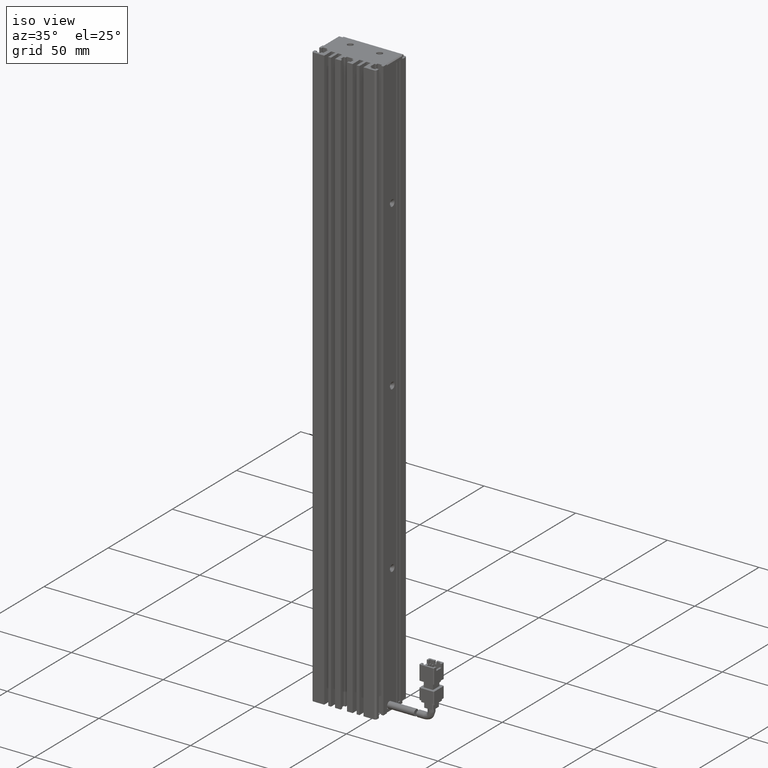
[diagram: clean part render]
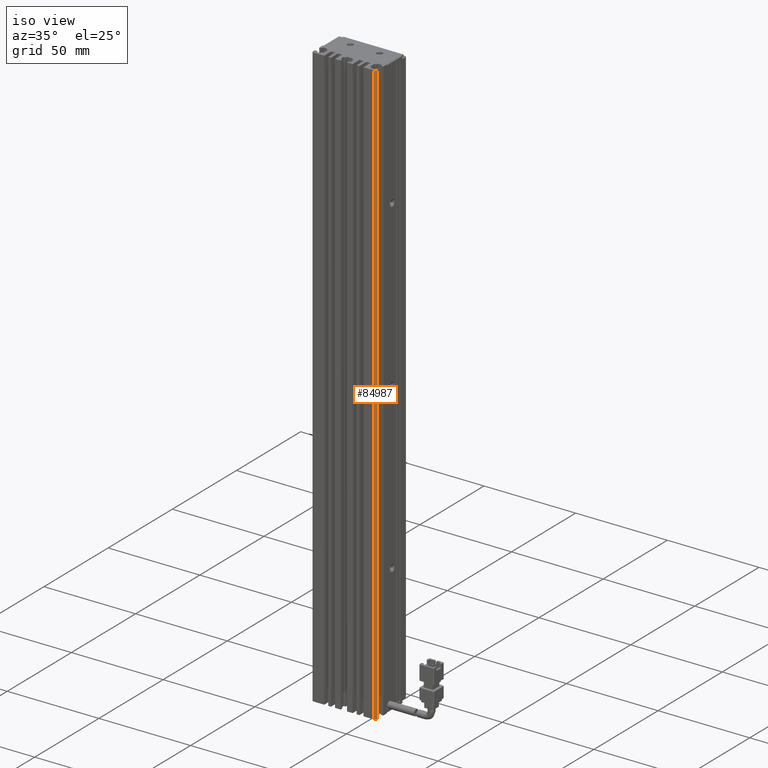
[diagram: same view with one face highlighted and labeled with its STEP entity id]
A machine part, iso view. The second image highlights one B-rep face of the part: STEP entity #84987.
In plain terms, the highlighted cylindrical surface (edge-blend (fillet) strip) has radius 1 mm, axis along (-0, -0, -1).
Its self-contained STEP definition (entity closure, byte-faithful):
#12129 = CARTESIAN_POINT ( 'NONE',  ( 57.42537974683542500, 11.99073232304837700, 45.00000000000000000 ) ) ;
#15097 = DIRECTION ( 'NONE',  ( -1.000000000000000000, 0.0000000000000000000, 0.0000000000000000000 ) ) ;
#15469 = VERTEX_POINT ( 'NONE', #39201 ) ;
#15843 = VERTEX_POINT ( 'NONE', #107187 ) ;
#21302 = DIRECTION ( 'NONE',  ( -0.0000000000000000000, -0.0000000000000000000, -1.000000000000000000 ) ) ;
#27789 = ORIENTED_EDGE ( 'NONE', *, *, #41852, .T. ) ;
#28408 = EDGE_CURVE ( 'NONE', #114200, #15843, #84889, .T. ) ;
#28442 = CARTESIAN_POINT ( 'NONE',  ( 58.42537974683542500, 11.99073232304837700, 45.00000000000000000 ) ) ;
#28536 = CARTESIAN_POINT ( 'NONE',  ( 58.42537974683542500, 11.99073232304837500, -275.0000000000000000 ) ) ;
#31213 = FACE_OUTER_BOUND ( 'NONE', #54802, .T. ) ;
#32399 = ORIENTED_EDGE ( 'NONE', *, *, #44777, .T. ) ;
#38529 = DIRECTION ( 'NONE',  ( 0.0000000000000000000, 0.0000000000000000000, 1.000000000000000000 ) ) ;
#39201 = CARTESIAN_POINT ( 'NONE',  ( 57.42537974683542500, 10.99073232304837200, 45.00000000000000000 ) ) ;
#41852 = EDGE_CURVE ( 'NONE', #74654, #114200, #96231, .T. ) ;
#42585 = CARTESIAN_POINT ( 'NONE',  ( 57.42537974683542500, 11.99073232304837700, 45.00000000000000000 ) ) ;
#44777 = EDGE_CURVE ( 'NONE', #15843, #15469, #96874, .T. ) ;
#49619 = VECTOR ( 'NONE', #100015, 1000.000000000000000 ) ;
#53407 = ORIENTED_EDGE ( 'NONE', *, *, #105050, .T. ) ;
#54802 = EDGE_LOOP ( 'NONE', ( #32399, #53407, #27789, #96455 ) ) ;
#63071 = VECTOR ( 'NONE', #21302, 1000.000000000000000 ) ;
#73712 = DIRECTION ( 'NONE',  ( -0.0000000000000000000, -0.0000000000000000000, -1.000000000000000000 ) ) ;
#74654 = VERTEX_POINT ( 'NONE', #74781 ) ;
#74781 = CARTESIAN_POINT ( 'NONE',  ( 57.42537974683542500, 10.99073232304837200, -275.0000000000000000 ) ) ;
#80512 = AXIS2_PLACEMENT_3D ( 'NONE', #12129, #73712, #15097 ) ;
#83437 = CARTESIAN_POINT ( 'NONE',  ( 57.42537974683542500, 10.99073232304837500, 45.00000000000000000 ) ) ;
#83875 = DIRECTION ( 'NONE',  ( -0.0000000000000000000, -0.0000000000000000000, -1.000000000000000000 ) ) ;
#84889 = LINE ( 'NONE', #28442, #49619 ) ;
#84987 = ADVANCED_FACE ( 'NONE', ( #31213 ), #109675, .T. ) ;
#88786 = LINE ( 'NONE', #83437, #63071 ) ;
#96231 = CIRCLE ( 'NONE', #104347, 1.000000000000000900 ) ;
#96455 = ORIENTED_EDGE ( 'NONE', *, *, #28408, .T. ) ;
#96874 = CIRCLE ( 'NONE', #116071, 1.000000000000000900 ) ;
#100015 = DIRECTION ( 'NONE',  ( 0.0000000000000000000, 0.0000000000000000000, 1.000000000000000000 ) ) ;
#104347 = AXIS2_PLACEMENT_3D ( 'NONE', #109803, #38529, #120515 ) ;
#105050 = EDGE_CURVE ( 'NONE', #15469, #74654, #88786, .T. ) ;
#107187 = CARTESIAN_POINT ( 'NONE',  ( 58.42537974683542500, 11.99073232304837500, 45.00000000000000000 ) ) ;
#109675 = CYLINDRICAL_SURFACE ( 'NONE', #80512, 1.000000000000000900 ) ;
#109803 = CARTESIAN_POINT ( 'NONE',  ( 57.42537974683542500, 11.99073232304837700, -275.0000000000000000 ) ) ;
#114200 = VERTEX_POINT ( 'NONE', #28536 ) ;
#115614 = DIRECTION ( 'NONE',  ( -1.000000000000000000, 0.0000000000000000000, 0.0000000000000000000 ) ) ;
#116071 = AXIS2_PLACEMENT_3D ( 'NONE', #42585, #83875, #115614 ) ;
#120515 = DIRECTION ( 'NONE',  ( -1.000000000000000000, 0.0000000000000000000, 0.0000000000000000000 ) ) ;